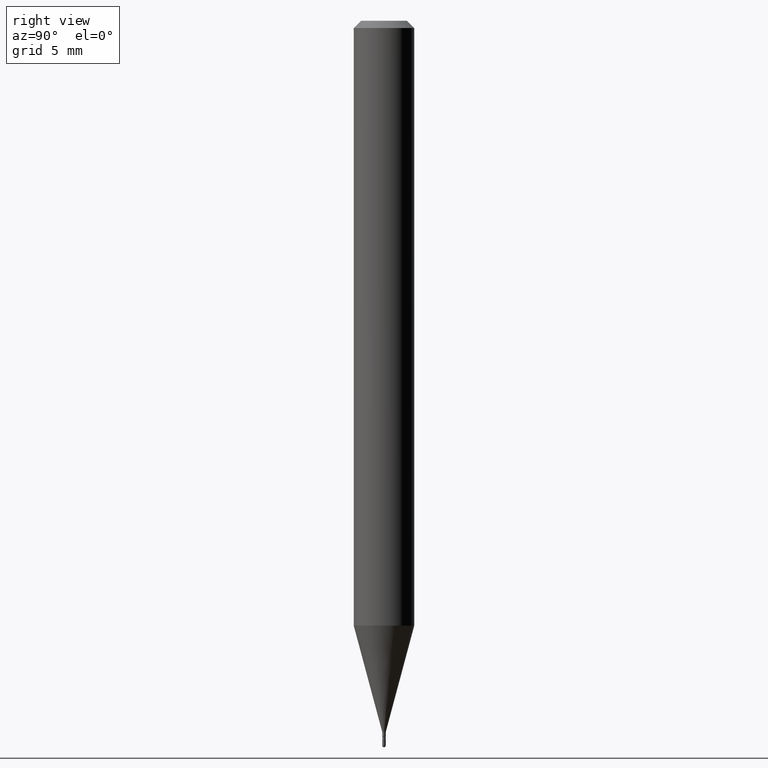
[diagram: clean part render]
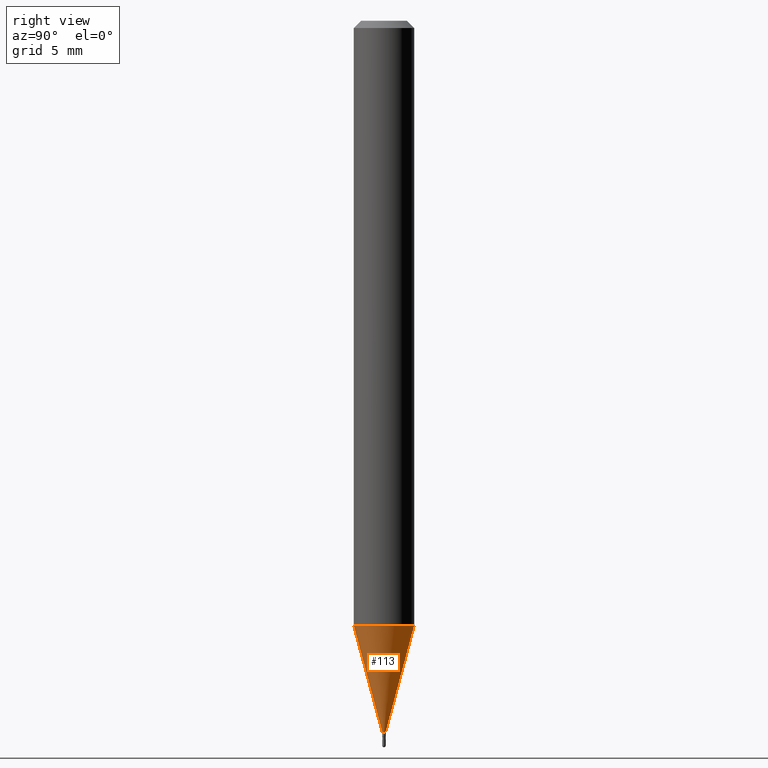
[diagram: same view with one face highlighted and labeled with its STEP entity id]
A machine part, right view. The second image highlights one B-rep face of the part: STEP entity #113.
In plain terms, the highlighted conical surface has half-angle 15 deg.
Its self-contained STEP definition (entity closure, byte-faithful):
#20 = VECTOR ( 'NONE', #152, 39.37007874015748143 ) ;
#34 = VECTOR ( 'NONE', #446, 39.37007874015748854 ) ;
#46 = DIRECTION ( 'NONE',  ( -2.445455208269520980E-29, 3.491500811832252799E-15, 1.000000000000000000 ) ) ;
#48 = AXIS2_PLACEMENT_3D ( 'NONE', #354, #122, #132 ) ;
#58 = EDGE_CURVE ( 'NONE', #457, #218, #504, .T. ) ;
#86 = CONICAL_SURFACE ( 'NONE', #48, 0.003499999999999924179, 0.2617993877991506291 ) ;
#110 = AXIS2_PLACEMENT_3D ( 'NONE', #395, #46, #169 ) ;
#113 = ADVANCED_FACE ( 'NONE', ( #400 ), #86, .T. ) ;
#122 = DIRECTION ( 'NONE',  ( -2.445455208269520980E-29, 3.491500811832252799E-15, 1.000000000000000000 ) ) ;
#132 = DIRECTION ( 'NONE',  ( -6.982962677686265133E-15, -1.000000000000000000, 0.000000000000000000 ) ) ;
#150 = DIRECTION ( 'NONE',  ( -6.982962677686265922E-15, -1.000000000000000000, 4.370956789862821150E-15 ) ) ;
#152 = DIRECTION ( 'NONE',  ( 1.839019923739602682E-15, 0.2588190451025252914, 0.9659258262890670910 ) ) ;
#158 = CARTESIAN_POINT ( 'NONE',  ( 2.486899575163888867E-17, 0.003499999999994795035, -1.468999999999999861 ) ) ;
#169 = DIRECTION ( 'NONE',  ( -6.982962677686265133E-15, -1.000000000000000000, 0.000000000000000000 ) ) ;
#196 = CARTESIAN_POINT ( 'NONE',  ( 3.053906478939076642E-29, -4.360217645540450292E-15, -1.248809002353436837 ) ) ;
#200 = CIRCLE ( 'NONE', #342, 0.06250000000000000000 ) ;
#201 = EDGE_CURVE ( 'NONE', #241, #457, #234, .T. ) ;
#218 = VERTEX_POINT ( 'NONE', #336 ) ;
#234 = CIRCLE ( 'NONE', #110, 0.003499999999999924179 ) ;
#241 = VERTEX_POINT ( 'NONE', #260 ) ;
#260 = CARTESIAN_POINT ( 'NONE',  ( -2.444036937186547418E-17, -0.003500000000005053322, -1.468999999999999861 ) ) ;
#264 = CARTESIAN_POINT ( 'NONE',  ( 2.344791028008661059E-16, 0.003499999999994795035, -1.468999999999999861 ) ) ;
#267 = DIRECTION ( 'NONE',  ( -2.445455208269520980E-29, 3.491500811832252799E-15, 1.000000000000000000 ) ) ;
#291 = CARTESIAN_POINT ( 'NONE',  ( -4.364351673553611504E-16, -0.06250000000000435763, -1.248809002353436615 ) ) ;
#293 = EDGE_CURVE ( 'NONE', #241, #327, #340, .T. ) ;
#308 = ORIENTED_EDGE ( 'NONE', *, *, #58, .T. ) ;
#311 = ORIENTED_EDGE ( 'NONE', *, *, #201, .T. ) ;
#327 = VERTEX_POINT ( 'NONE', #291 ) ;
#336 = CARTESIAN_POINT ( 'NONE',  ( 4.440892098500930859E-16, 0.06249999999999564237, -1.248809002353437059 ) ) ;
#340 = LINE ( 'NONE', #480, #34 ) ;
#342 = AXIS2_PLACEMENT_3D ( 'NONE', #196, #267, #150 ) ;
#354 = CARTESIAN_POINT ( 'NONE',  ( 3.592373700947925645E-29, -5.129014692581578904E-15, -1.468999999999999861 ) ) ;
#384 = ORIENTED_EDGE ( 'NONE', *, *, #293, .F. ) ;
#395 = CARTESIAN_POINT ( 'NONE',  ( 3.592373700947925645E-29, -5.129014692581578904E-15, -1.468999999999999861 ) ) ;
#400 = FACE_OUTER_BOUND ( 'NONE', #407, .T. ) ;
#407 = EDGE_LOOP ( 'NONE', ( #311, #308, #454, #384 ) ) ;
#443 = EDGE_CURVE ( 'NONE', #327, #218, #200, .T. ) ;
#446 = DIRECTION ( 'NONE',  ( -1.807323732225332900E-15, -0.2588190451025185190, 0.9659258262890689783 ) ) ;
#454 = ORIENTED_EDGE ( 'NONE', *, *, #443, .F. ) ;
#457 = VERTEX_POINT ( 'NONE', #264 ) ;
#480 = CARTESIAN_POINT ( 'NONE',  ( -2.444036937186547418E-17, -0.003500000000005053322, -1.468999999999999861 ) ) ;
#504 = LINE ( 'NONE', #158, #20 ) ;